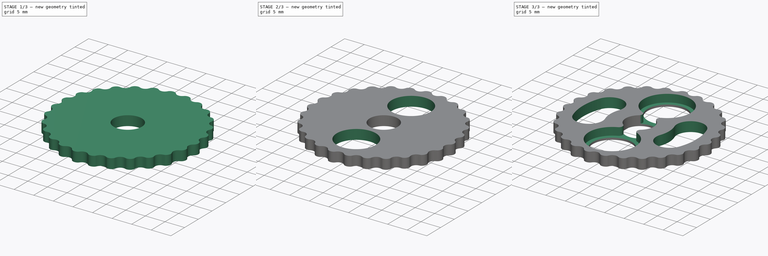
[diagram: build sequence overview — one tinted view per stage of 3, left to right]
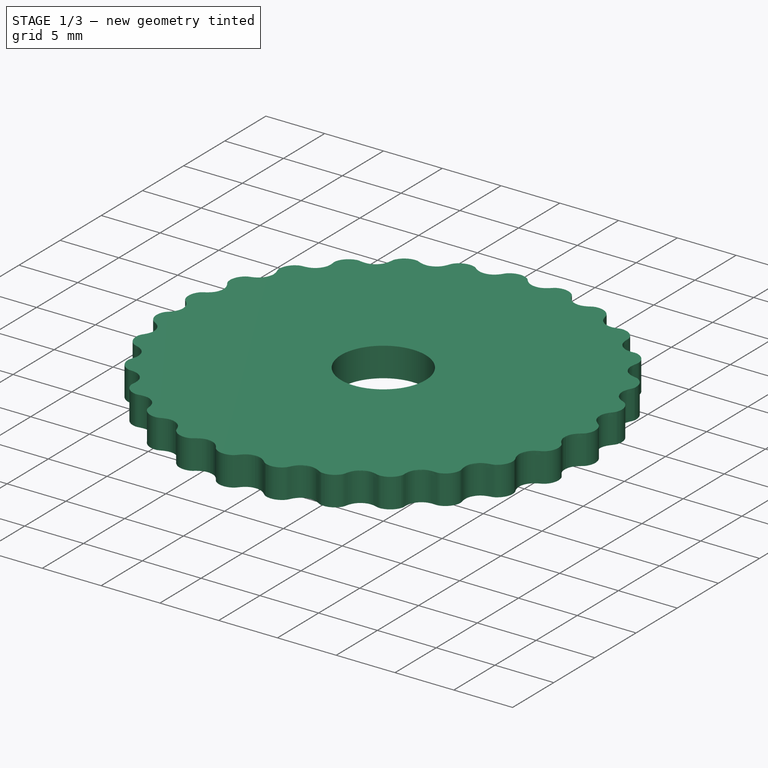
[diagram: stage 1 of 3 — iso view after this stage's code; geometry added in this stage tinted green]
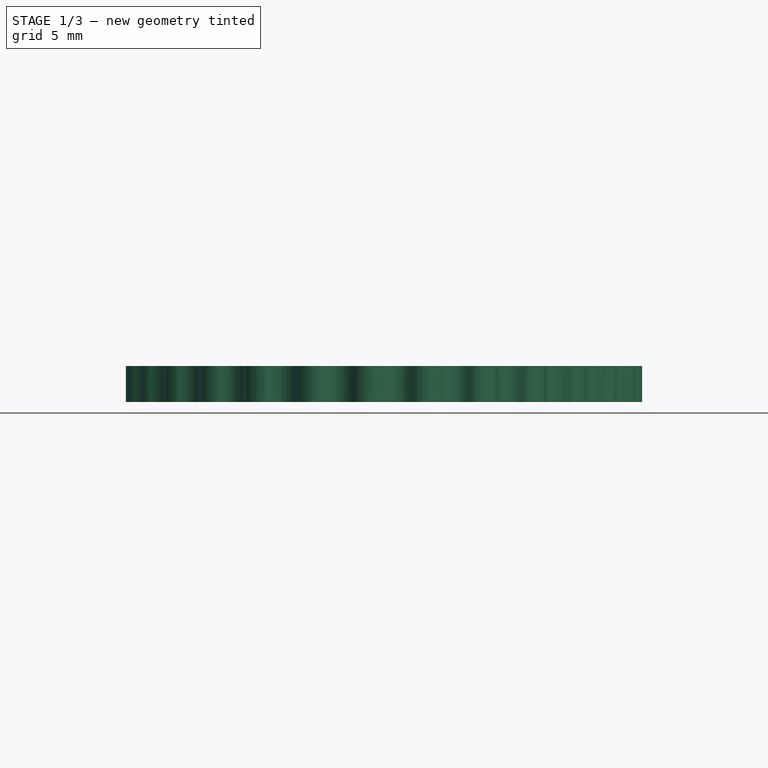
[diagram: stage 1 of 3 — front view after this stage's code; geometry added in this stage tinted green]
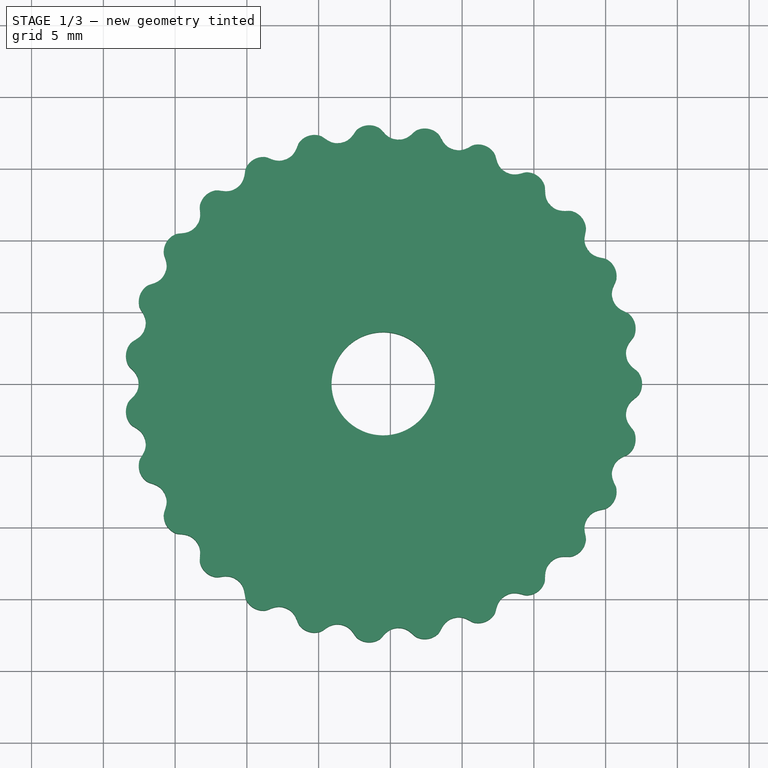
[diagram: stage 1 of 3 — top view after this stage's code; geometry added in this stage tinted green]
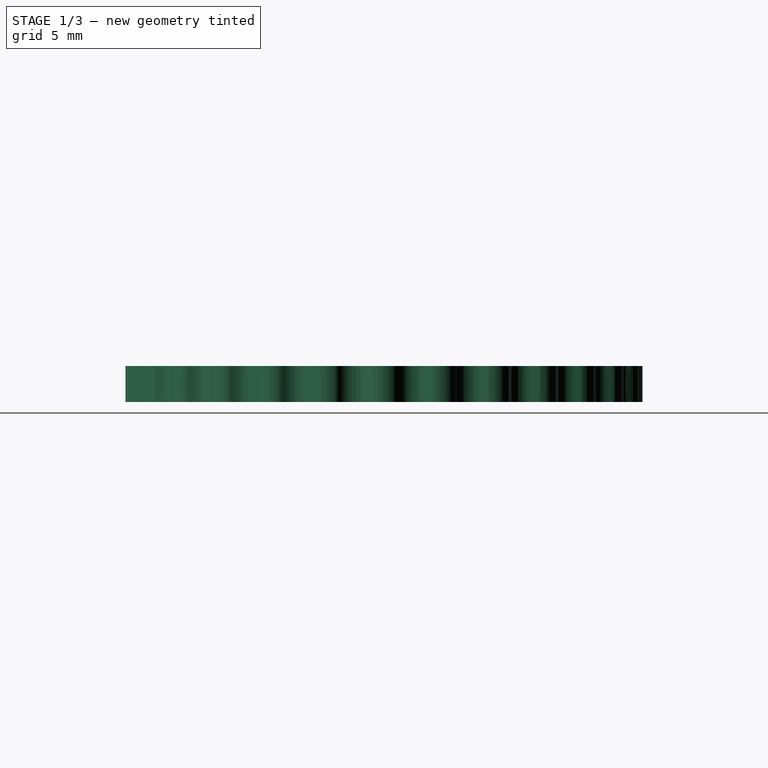
[diagram: stage 1 of 3 — right view after this stage's code; geometry added in this stage tinted green]
FCSTD DOCUMENT  (FreeCAD 0.21R33668 +26 (Git))
Label: cyclo_disk_T27
License: All rights reserved
LicenseURL: http://en.wikipedia.org/wiki/All_rights_reserved
objects: Sketcher::SketchObject×3, PartDesign::Pocket×3, Part::FeaturePython×1, PartDesign::FeatureBase×1, PartDesign::Body×1
note: 12 computed .brp shape members not serialized (recipe doc carries the construction recipe); baked Part::Feature solids carry a one-line shape summary decoded from their .brp

FEATURE [Part::FeaturePython] HypocycloidGear  # WARN: FeaturePython — macro-defined, semantics opaque (R4)
  AttacherType = Attacher::AttachEngine3D
  center_pins = true
  disk_height = 2.5
  eccentricity = 0.5
  hole_radius = 3.6
  pin_circle_radius = 18.8
  pin_height = 20
  pressure_angle_lim = 50
  pressure_angle_offset = 0.01
  roller_diameter = 2.5
  segment_count = 42
  show_disk0 = true
  show_disk1 = false
  show_pins = false
  teeth_number = 27
  version = 0.0.4
  expr: pin_circle_radius = 38 / 2 - 0.2
FEATURE [PartDesign::FeatureBase] BaseFeature
  BaseFeature = -> HypocycloidGear
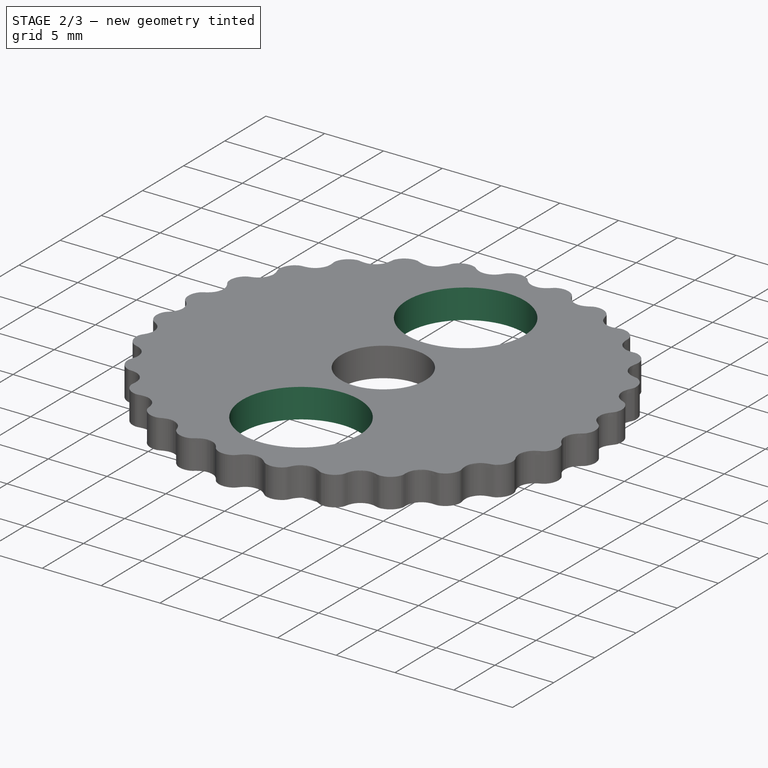
[diagram: stage 2 of 3 — iso view after this stage's code; geometry added in this stage tinted green]
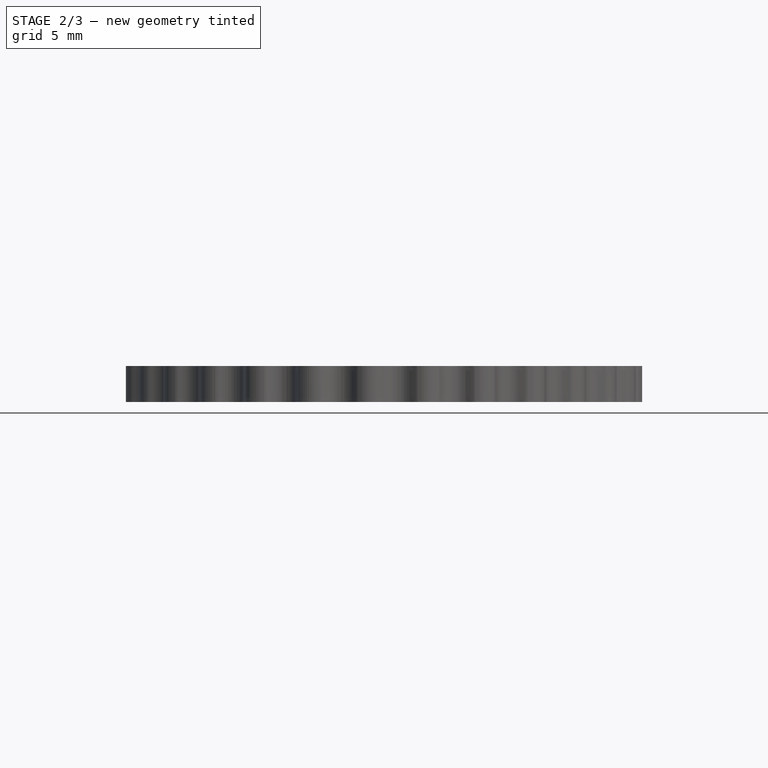
[diagram: stage 2 of 3 — front view after this stage's code; geometry added in this stage tinted green]
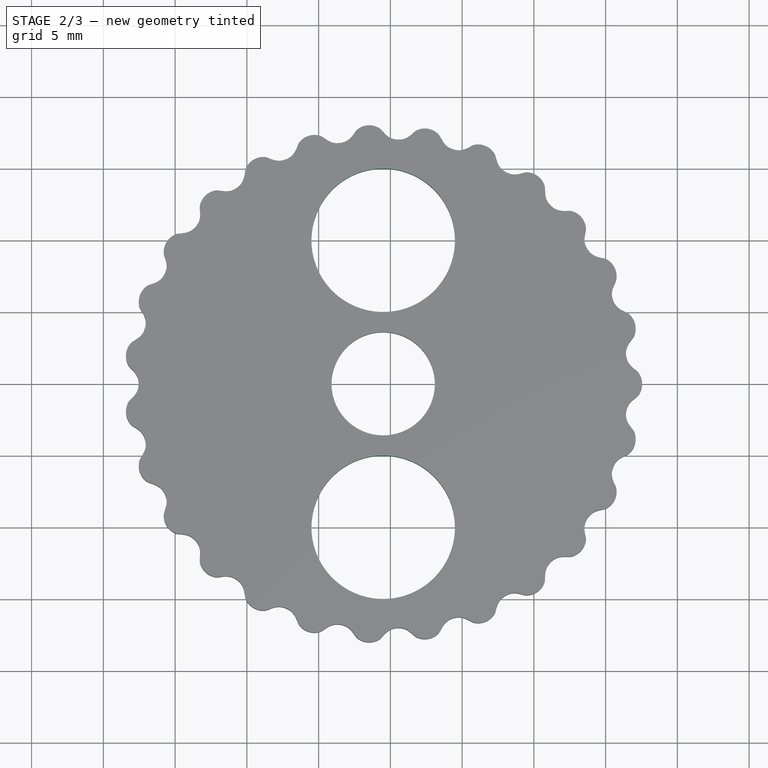
[diagram: stage 2 of 3 — top view after this stage's code; geometry added in this stage tinted green]
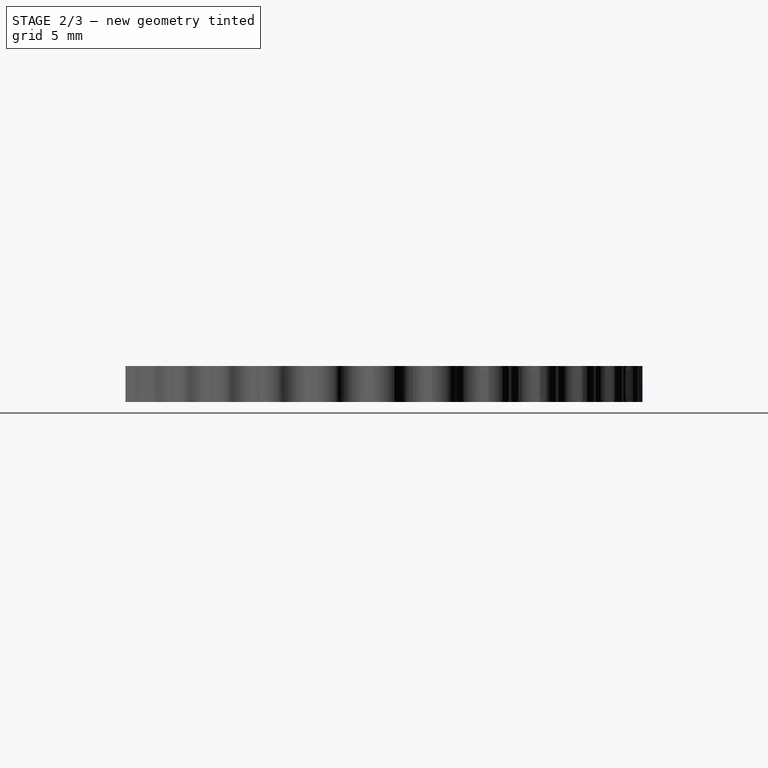
[diagram: stage 2 of 3 — right view after this stage's code; geometry added in this stage tinted green]
FEATURE [Sketcher::SketchObject] Sketch
  FullyConstrained = true
  MapMode = 5
  Placement = pos=(0,0,2.5) rot=(0,0,1;0rad)
  Support = -> [BaseFeature]
  expr: Constraints[0] = 0.5 * 10
  expr: Constraints[1] = 29 * 0.5 + 0.5
  sketch-geometry (6):
    g0: Circle CenterX=-0.5 CenterY=0 CenterZ=0 NormalX=0 NormalY=0 NormalZ=1 AngleXU=0 Radius=2.5
    g1: Circle CenterX=-0.5 CenterY=10 CenterZ=0 NormalX=0 NormalY=0 NormalZ=1 AngleXU=0 Radius=7.5
    g2: Circle CenterX=-0.5 CenterY=-10 CenterZ=0 NormalX=0 NormalY=0 NormalZ=1 AngleXU=0 Radius=7.5
    g3: LineSegment StartX=-0.5 StartY=10 StartZ=0 EndX=-0.5 EndY=-10 EndZ=0
    g4: Circle CenterX=-0.5 CenterY=10 CenterZ=0 NormalX=0 NormalY=0 NormalZ=1 AngleXU=0 Radius=5
    g5: Circle CenterX=-0.5 CenterY=-10 CenterZ=0 NormalX=0 NormalY=0 NormalZ=1 AngleXU=0 Radius=5
  constraints (15):
    c: Diameter(g0) = 5
    c: Diameter(g1) = 15
    c: Tangent(g1,g0)
    c: Equal(g2,g1)
    c: Tangent(g0,g2)
    c: Coincident(g3,g1)
    c: Coincident(g3,g2)
    c: PointOnObject(g0,g3)
    c: Vertical(g3)
    c: Coincident(g4,g1)
    c: Coincident(g5,g2)
    c: Equal(g5,g4)
    c: Diameter(g4) = 10
    c: PointOnObject(g0,g-1)
    c: DistanceX(g0,g-1) = 0.5
FEATURE [PartDesign::Pocket] Pocket
  BaseFeature = -> BaseFeature
  Direction = (0,0,-1)
  Length = 3
  Length2 = 5
  Profile = -> Sketch
  ReferenceAxis = -> Sketch [N_Axis]
  Type = 0
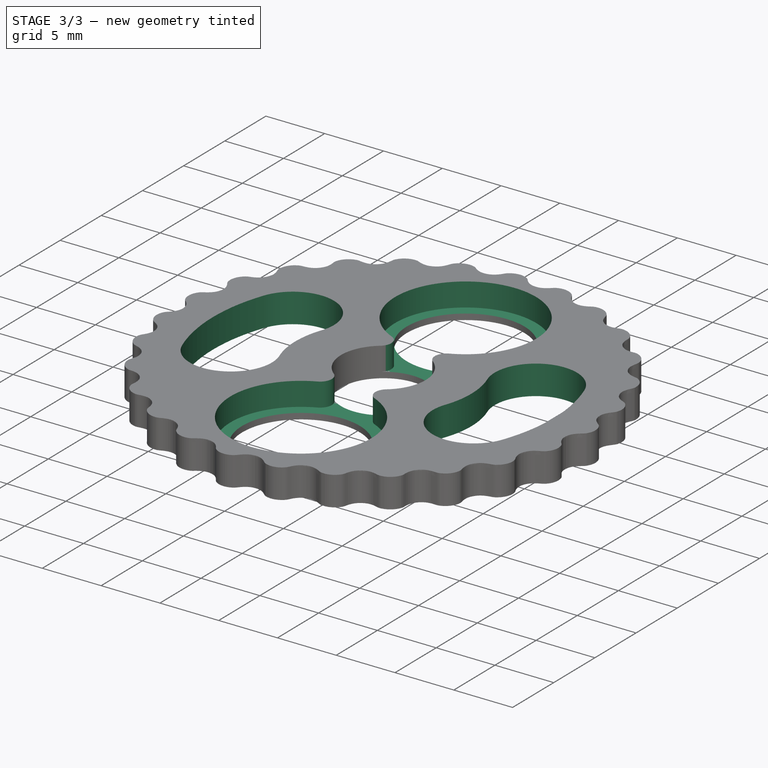
[diagram: stage 3 of 3 — iso view after this stage's code; geometry added in this stage tinted green]
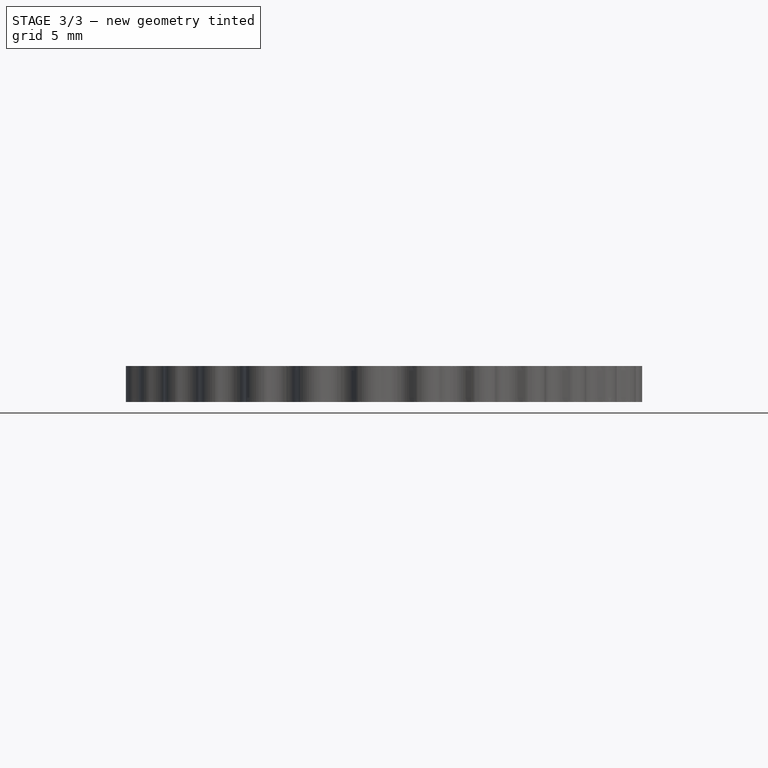
[diagram: stage 3 of 3 — front view after this stage's code; geometry added in this stage tinted green]
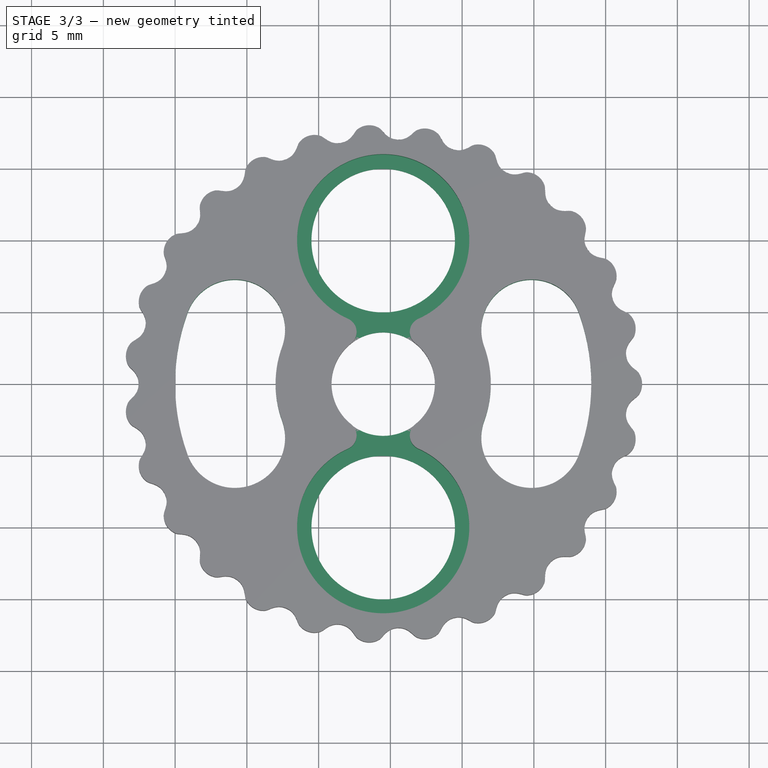
[diagram: stage 3 of 3 — top view after this stage's code; geometry added in this stage tinted green]
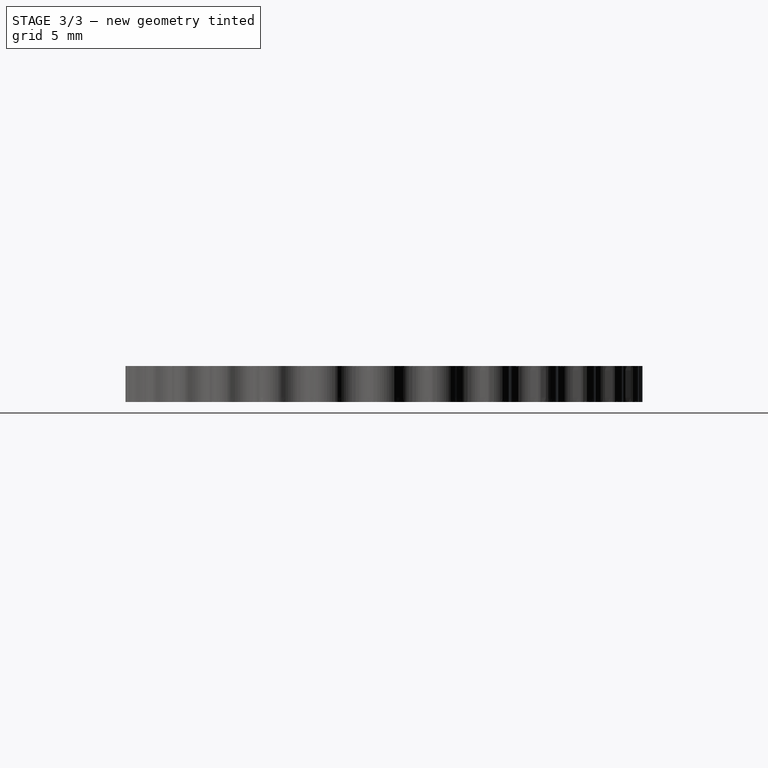
[diagram: stage 3 of 3 — right view after this stage's code; geometry added in this stage tinted green]
FEATURE [Sketcher::SketchObject] Sketch001
  ExternalGeometry = -> [Pocket]
  FullyConstrained = true
  MapMode = 5
  Placement = pos=(0,0,2.5) rot=(0,0,1;0rad)
  Support = -> [Pocket]
  sketch-geometry (12):
    g0: Circle CenterX=-0.5 CenterY=0 CenterZ=0 NormalX=0 NormalY=0 NormalZ=1 AngleXU=0 Radius=11
    g1: LineSegment StartX=9.83662 StartY=3.76222 StartZ=0 EndX=-10.8366 EndY=-3.76222 EndZ=0
    g2: LineSegment StartX=-10.8366 StartY=3.76222 StartZ=0 EndX=9.83662 EndY=-3.76222 EndZ=0
    g3: LineSegment StartX=9.83662 StartY=3.76222 StartZ=0 EndX=-10.8366 EndY=3.76222 EndZ=0
    g4: ArcOfCircle CenterX=-10.8366 CenterY=3.76222 CenterZ=0 NormalX=0 NormalY=0 NormalZ=1 AngleXU=0 Radius=3.5 StartAngle=5.93412 EndAngle=9.07571
    g5: ArcOfCircle CenterX=-10.8366 CenterY=-3.76222 CenterZ=0 NormalX=0 NormalY=0 NormalZ=1 AngleXU=0 Radius=3.5 StartAngle=3.49066 EndAngle=6.63225
    g6: ArcOfCircle CenterX=-0.5 CenterY=0 CenterZ=0 NormalX=0 NormalY=0 NormalZ=1 AngleXU=0 Radius=7.5 StartAngle=2.79253 EndAngle=3.49066
    g7: ArcOfCircle CenterX=-0.5 CenterY=0 CenterZ=0 NormalX=0 NormalY=0 NormalZ=1 AngleXU=0 Radius=14.5 StartAngle=2.79253 EndAngle=3.49066
    g8: ArcOfCircle CenterX=9.83662 CenterY=3.76222 CenterZ=0 NormalX=0 NormalY=0 NormalZ=1 AngleXU=0 Radius=3.5 StartAngle=0.349066 EndAngle=3.49066
    g9: ArcOfCircle CenterX=9.83662 CenterY=-3.76222 CenterZ=0 NormalX=0 NormalY=0 NormalZ=1 AngleXU=0 Radius=3.5 StartAngle=2.79253 EndAngle=5.93412
    g10: ArcOfCircle CenterX=-0.5 CenterY=0 CenterZ=0 NormalX=0 NormalY=0 NormalZ=1 AngleXU=0 Radius=7.5 StartAngle=5.93412 EndAngle=6.63225
    g11: ArcOfCircle CenterX=-0.5 CenterY=0 CenterZ=0 NormalX=0 NormalY=0 NormalZ=1 AngleXU=0 Radius=14.5 StartAngle=5.93412 EndAngle=6.63225
  constraints (28):
    c: Diameter(g0) = 22
    c: PointOnObject(g1,g0)
    c: PointOnObject(g1,g0)
    c: Angle(g-1,g1) = 0.349066
    c: PointOnObject(g0,g2)
    c: PointOnObject(g0,g1)
    c: Horizontal(g3)
    c: Coincident(g4,g2)
    c: Diameter(g4) = 7
    c: Tangent(g5,g6) = 1.5708
    c: Tangent(g5,g7) = -1.5708
    c: Tangent(g4,g7) = -1.5708
    c: Tangent(g4,g6) = 1.5708
    c: Coincident(g8,g1)
    c: Coincident(g9,g2)
    c: Tangent(g8,g10) = 1.5708
    c: Tangent(g8,g11) = -1.5708
    c: Tangent(g9,g11) = -1.5708
    c: Tangent(g9,g10) = 1.5708
    c: Equal(g4,g8)
    c: Coincident(g5,g1)
    c: Coincident(g3,g4)
    c: Coincident(g3,g8)
    c: Coincident(g0,g6)
    c: Coincident(g0,g7)
    c: Coincident(g0,g10)
    c: Coincident(g0,g11)
    c: Coincident(g0,g-3)
FEATURE [PartDesign::Pocket] Pocket001
  BaseFeature = -> Pocket
  Direction = (0,0,-1)
  Length = 2.5
  Length2 = 5
  Profile = -> Sketch001
  ReferenceAxis = -> Sketch001 [N_Axis]
  Type = 1
FEATURE [Sketcher::SketchObject] Sketch003
  ExternalGeometry = -> [Pocket001]
  FullyConstrained = true
  MapMode = 5
  Placement = pos=(0,0,2.5) rot=(0,0,1;0rad)
  Support = -> [Pocket001]
  sketch-geometry (8):
    g0: ArcOfCircle CenterX=-0.5 CenterY=10 CenterZ=0 NormalX=0 NormalY=0 NormalZ=1 AngleXU=0 Radius=6 StartAngle=5.13226 EndAngle=10.5757
    g1: ArcOfCircle CenterX=-0.5 CenterY=-10 CenterZ=0 NormalX=0 NormalY=0 NormalZ=1 AngleXU=0 Radius=6 StartAngle=1.99066 EndAngle=7.43411
    g2: ArcOfCircle CenterX=-0.5 CenterY=0 CenterZ=0 NormalX=0 NormalY=0 NormalZ=1 AngleXU=0 Radius=3.6 StartAngle=5.38154 EndAngle=7.18483
    g3: ArcOfCircle CenterX=2.35348 CenterY=-3.608 CenterZ=0 NormalX=0 NormalY=0 NormalZ=1 AngleXU=0 Radius=1 StartAngle=2.23995 EndAngle=4.29252
    g4: ArcOfCircle CenterX=2.35348 CenterY=3.608 CenterZ=0 NormalX=0 NormalY=0 NormalZ=1 AngleXU=0 Radius=1 StartAngle=1.99066 EndAngle=4.04324
    g5: ArcOfCircle CenterX=-3.35348 CenterY=3.608 CenterZ=0 NormalX=0 NormalY=0 NormalZ=1 AngleXU=0 Radius=1 StartAngle=5.38154 EndAngle=7.43411
    g6: ArcOfCircle CenterX=-0.5 CenterY=0 CenterZ=0 NormalX=0 NormalY=0 NormalZ=1 AngleXU=0 Radius=3.6 StartAngle=2.23995 EndAngle=4.04324
    g7: ArcOfCircle CenterX=-3.35348 CenterY=-3.608 CenterZ=0 NormalX=0 NormalY=0 NormalZ=1 AngleXU=0 Radius=1 StartAngle=5.13226 EndAngle=7.18483
  constraints (20):
    c: Coincident(g1,g-3)
    c: Tangent(g3,g2) = 1.5708
    c: Tangent(g3,g1) = 1.5708
    c: Tangent(g0,g4) = 1.5708
    c: Tangent(g4,g2) = 1.5708
    c: Coincident(g6,g2)
    c: Tangent(g5,g0) = 1.5708
    c: Tangent(g6,g5) = 1.5708
    c: Tangent(g7,g6) = 1.5708
    c: Tangent(g7,g1) = 1.5708
    c: Equal(g5,g4)
    c: Equal(g4,g3)
    c: Equal(g3,g7)
    c: Radius(g4) = 1
    c: Equal(g2,g6)
    c: Coincident(g2,g-4)
    c: Equal(g2,g-4)
    c: Coincident(g0,g-5)
    c: Equal(g0,g1)
    c: Diameter(g0) = 12
FEATURE [PartDesign::Pocket] Pocket003
  BaseFeature = -> Pocket001
  Direction = (0,0,-1)
  Length = 2
  Length2 = 5
  Profile = -> Sketch003
  ReferenceAxis = -> Sketch003 [N_Axis]
  Type = 0
FEATURE [PartDesign::Body] Body001  label="Body"
  BaseFeature = -> HypocycloidGear
  Group = -> [BaseFeature,Sketch,Pocket,Sketch001,Pocket001,Sketch003,Pocket003]
  Origin = -> Origin001
  Tip = -> Pocket003
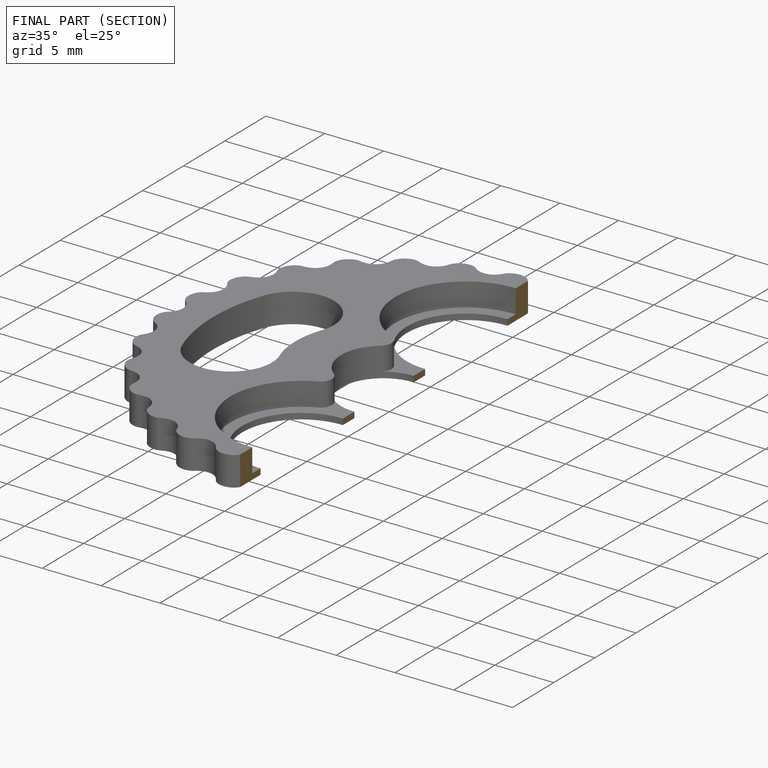
[diagram: finished part — half-section view (interior)]
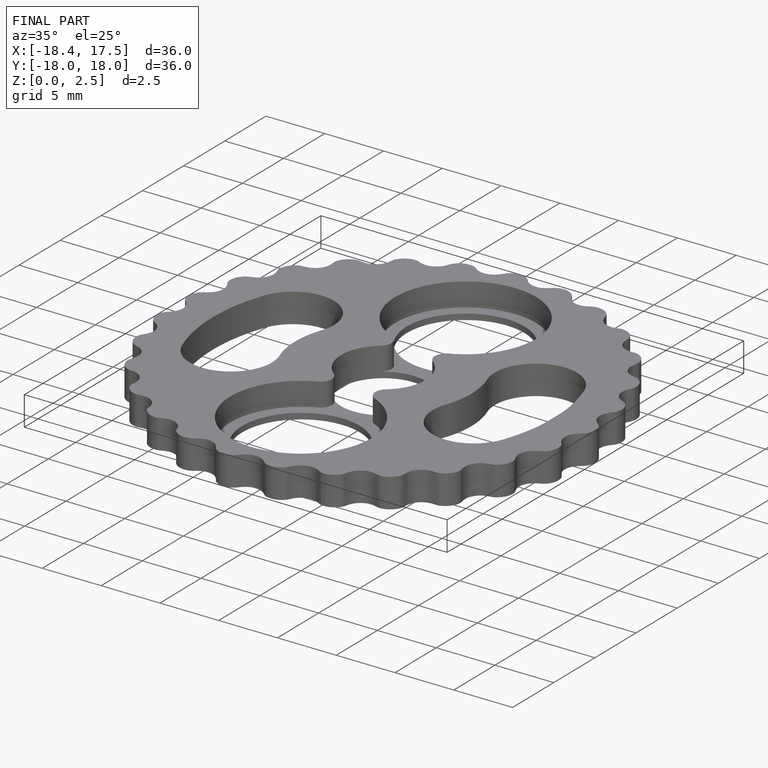
[diagram: finished part — iso view with bounding-box wireframe]
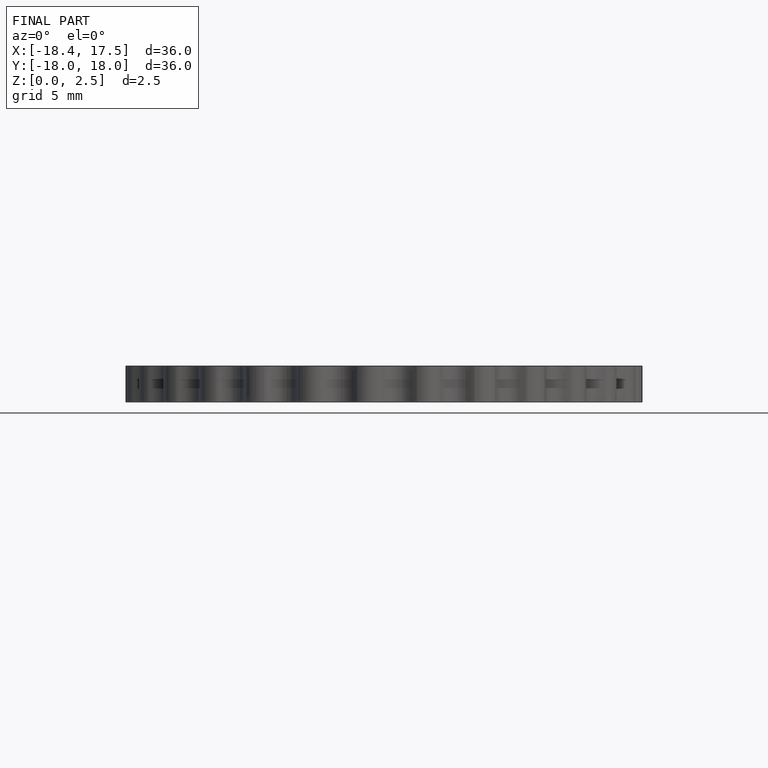
[diagram: finished part — front view with bounding-box wireframe]
